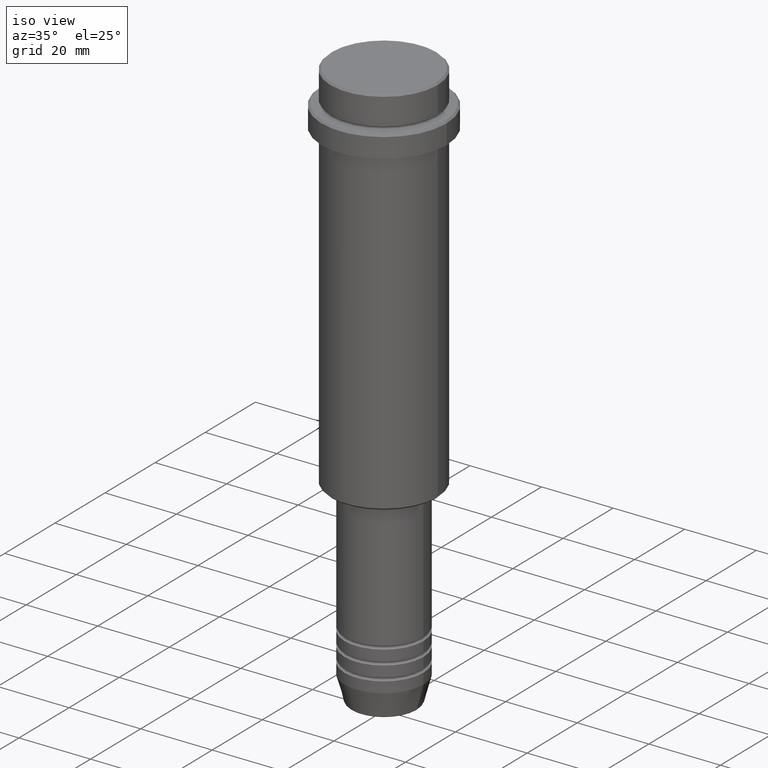
[diagram: clean part render]
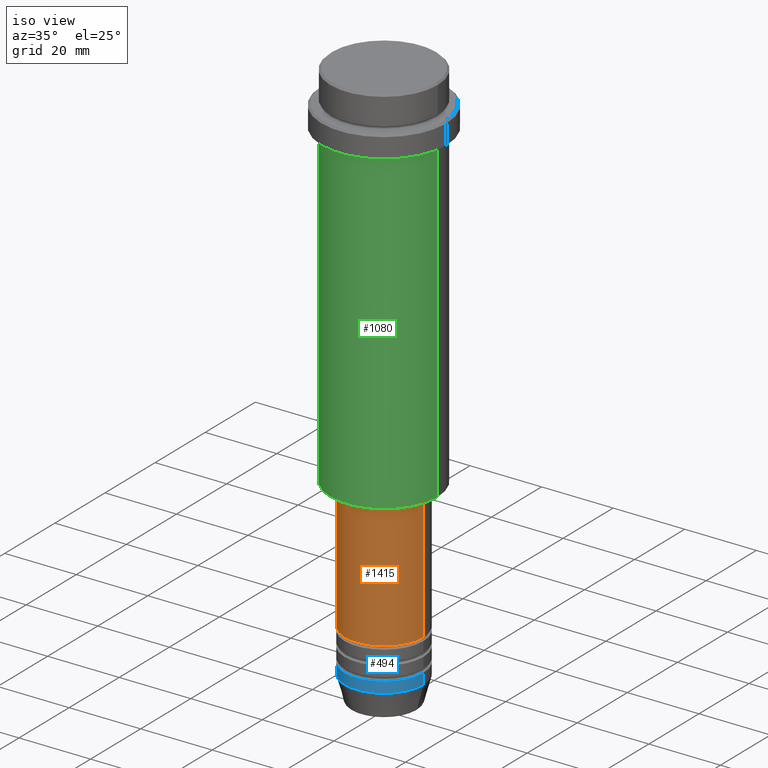
[diagram: same view with three faces highlighted in distinct colors, each labeled with its STEP entity id]
A machine part, iso view with three faces highlighted in distinct colors.
Their STEP definitions:

[orange] entity #1415 — the highlighted cylindrical surface (partial cylindrical patch) has radius 11 mm, axis along (-0, -0, 1).
#3 = EDGE_CURVE ( 'NONE', #942, #923, #1340, .T. ) ;
#9 = VECTOR ( 'NONE', #1145, 1000.000000000000000 ) ;
#146 = ORIENTED_EDGE ( 'NONE', *, *, #3, .F. ) ;
#249 = CARTESIAN_POINT ( 'NONE',  ( 0.000000000000000000, 0.000000000000000000, 0.000000000000000000 ) ) ;
#283 = LINE ( 'NONE', #616, #9 ) ;
#286 = ORIENTED_EDGE ( 'NONE', *, *, #951, .T. ) ;
#364 = FACE_OUTER_BOUND ( 'NONE', #1179, .T. ) ;
#517 = EDGE_CURVE ( 'NONE', #519, #1363, #1379, .T. ) ;
#519 = VERTEX_POINT ( 'NONE', #1342 ) ;
#535 = EDGE_CURVE ( 'NONE', #519, #942, #858, .T. ) ;
#598 = DIRECTION ( 'NONE',  ( -0.000000000000000000, -0.000000000000000000, 1.000000000000000000 ) ) ;
#601 = ORIENTED_EDGE ( 'NONE', *, *, #517, .T. ) ;
#607 = CARTESIAN_POINT ( 'NONE',  ( -11.00000000000000000, 1.347111479062088405E-15, 0.000000000000000000 ) ) ;
#613 = CARTESIAN_POINT ( 'NONE',  ( 11.00000000000000000, 0.000000000000000000, -140.9999999999999147 ) ) ;
#616 = CARTESIAN_POINT ( 'NONE',  ( 11.00000000000000000, 0.000000000000000000, 0.000000000000000000 ) ) ;
#636 = AXIS2_PLACEMENT_3D ( 'NONE', #249, #754, #872 ) ;
#754 = DIRECTION ( 'NONE',  ( -0.000000000000000000, -0.000000000000000000, 1.000000000000000000 ) ) ;
#781 = ORIENTED_EDGE ( 'NONE', *, *, #535, .F. ) ;
#858 = LINE ( 'NONE', #607, #1274 ) ;
#872 = DIRECTION ( 'NONE',  ( 1.000000000000000000, 0.000000000000000000, 0.000000000000000000 ) ) ;
#895 = CARTESIAN_POINT ( 'NONE',  ( 10.99999999999999822, 0.000000000000000000, -106.0000000000000142 ) ) ;
#921 = CARTESIAN_POINT ( 'NONE',  ( -10.99999999999999822, 1.347111479062088207E-15, -106.0000000000000142 ) ) ;
#923 = VERTEX_POINT ( 'NONE', #895 ) ;
#939 = DIRECTION ( 'NONE',  ( 1.000000000000000000, 0.000000000000000000, 0.000000000000000000 ) ) ;
#942 = VERTEX_POINT ( 'NONE', #921 ) ;
#951 = EDGE_CURVE ( 'NONE', #1363, #923, #283, .T. ) ;
#1019 = AXIS2_PLACEMENT_3D ( 'NONE', #1086, #1173, #1074 ) ;
#1068 = AXIS2_PLACEMENT_3D ( 'NONE', #1144, #598, #939 ) ;
#1074 = DIRECTION ( 'NONE',  ( 1.000000000000000000, 0.000000000000000000, 0.000000000000000000 ) ) ;
#1086 = CARTESIAN_POINT ( 'NONE',  ( 0.000000000000000000, 0.000000000000000000, -106.0000000000000142 ) ) ;
#1144 = CARTESIAN_POINT ( 'NONE',  ( 0.000000000000000000, 0.000000000000000000, -140.9999999999999147 ) ) ;
#1145 = DIRECTION ( 'NONE',  ( -0.000000000000000000, -0.000000000000000000, 1.000000000000000000 ) ) ;
#1173 = DIRECTION ( 'NONE',  ( -0.000000000000000000, -0.000000000000000000, 1.000000000000000000 ) ) ;
#1179 = EDGE_LOOP ( 'NONE', ( #781, #601, #286, #146 ) ) ;
#1190 = DIRECTION ( 'NONE',  ( -0.000000000000000000, -0.000000000000000000, 1.000000000000000000 ) ) ;
#1240 = CYLINDRICAL_SURFACE ( 'NONE', #636, 11.00000000000000000 ) ;
#1274 = VECTOR ( 'NONE', #1190, 1000.000000000000000 ) ;
#1340 = CIRCLE ( 'NONE', #1019, 10.99999999999999822 ) ;
#1342 = CARTESIAN_POINT ( 'NONE',  ( -11.00000000000000000, 1.347111479062088405E-15, -140.9999999999999147 ) ) ;
#1363 = VERTEX_POINT ( 'NONE', #613 ) ;
#1379 = CIRCLE ( 'NONE', #1068, 11.00000000000000000 ) ;
#1415 = ADVANCED_FACE ( 'NONE', ( #364 ), #1240, .T. ) ;

[blue] entity #494 — the highlighted cylindrical surface (partial cylindrical patch) has radius 11 mm, axis along (-0, -0, 1).
#39 = LINE ( 'NONE', #1275, #1325 ) ;
#44 = DIRECTION ( 'NONE',  ( -0.000000000000000000, -0.000000000000000000, 1.000000000000000000 ) ) ;
#57 = DIRECTION ( 'NONE',  ( -0.000000000000000000, -0.000000000000000000, 1.000000000000000000 ) ) ;
#140 = CIRCLE ( 'NONE', #959, 11.00000000000000000 ) ;
#197 = VERTEX_POINT ( 'NONE', #783 ) ;
#207 = ORIENTED_EDGE ( 'NONE', *, *, #771, .T. ) ;
#256 = FACE_OUTER_BOUND ( 'NONE', #1384, .T. ) ;
#292 = VERTEX_POINT ( 'NONE', #388 ) ;
#350 = ORIENTED_EDGE ( 'NONE', *, *, #1039, .F. ) ;
#388 = CARTESIAN_POINT ( 'NONE',  ( -11.00000000000000000, 1.347111479062088405E-15, -153.0000000000000000 ) ) ;
#426 = CARTESIAN_POINT ( 'NONE',  ( -11.00000000000000000, 1.347111479062088405E-15, -150.0000000000000000 ) ) ;
#466 = CARTESIAN_POINT ( 'NONE',  ( 0.000000000000000000, 0.000000000000000000, -153.0000000000000000 ) ) ;
#473 = DIRECTION ( 'NONE',  ( -0.000000000000000000, -0.000000000000000000, 1.000000000000000000 ) ) ;
#478 = DIRECTION ( 'NONE',  ( 1.000000000000000000, 0.000000000000000000, 0.000000000000000000 ) ) ;
#494 = ADVANCED_FACE ( 'NONE', ( #256 ), #589, .T. ) ;
#589 = CYLINDRICAL_SURFACE ( 'NONE', #605, 11.00000000000000000 ) ;
#600 = DIRECTION ( 'NONE',  ( 1.000000000000000000, 0.000000000000000000, 0.000000000000000000 ) ) ;
#604 = CARTESIAN_POINT ( 'NONE',  ( 11.00000000000000000, 0.000000000000000000, 0.000000000000000000 ) ) ;
#605 = AXIS2_PLACEMENT_3D ( 'NONE', #1033, #44, #478 ) ;
#608 = AXIS2_PLACEMENT_3D ( 'NONE', #989, #735, #768 ) ;
#623 = ORIENTED_EDGE ( 'NONE', *, *, #1360, .F. ) ;
#735 = DIRECTION ( 'NONE',  ( -0.000000000000000000, -0.000000000000000000, 1.000000000000000000 ) ) ;
#768 = DIRECTION ( 'NONE',  ( 1.000000000000000000, 0.000000000000000000, 0.000000000000000000 ) ) ;
#771 = EDGE_CURVE ( 'NONE', #292, #932, #140, .T. ) ;
#783 = CARTESIAN_POINT ( 'NONE',  ( 11.00000000000000000, 0.000000000000000000, -150.0000000000000000 ) ) ;
#898 = EDGE_CURVE ( 'NONE', #932, #197, #1061, .T. ) ;
#932 = VERTEX_POINT ( 'NONE', #1371 ) ;
#959 = AXIS2_PLACEMENT_3D ( 'NONE', #466, #473, #600 ) ;
#960 = DIRECTION ( 'NONE',  ( -0.000000000000000000, -0.000000000000000000, 1.000000000000000000 ) ) ;
#989 = CARTESIAN_POINT ( 'NONE',  ( 0.000000000000000000, 0.000000000000000000, -150.0000000000000000 ) ) ;
#1004 = VERTEX_POINT ( 'NONE', #426 ) ;
#1033 = CARTESIAN_POINT ( 'NONE',  ( 0.000000000000000000, 0.000000000000000000, 0.000000000000000000 ) ) ;
#1039 = EDGE_CURVE ( 'NONE', #1004, #197, #1229, .T. ) ;
#1061 = LINE ( 'NONE', #604, #1276 ) ;
#1139 = ORIENTED_EDGE ( 'NONE', *, *, #898, .T. ) ;
#1229 = CIRCLE ( 'NONE', #608, 11.00000000000000000 ) ;
#1275 = CARTESIAN_POINT ( 'NONE',  ( -11.00000000000000000, 1.347111479062088405E-15, 0.000000000000000000 ) ) ;
#1276 = VECTOR ( 'NONE', #960, 1000.000000000000000 ) ;
#1325 = VECTOR ( 'NONE', #57, 1000.000000000000000 ) ;
#1360 = EDGE_CURVE ( 'NONE', #292, #1004, #39, .T. ) ;
#1371 = CARTESIAN_POINT ( 'NONE',  ( 11.00000000000000000, 0.000000000000000000, -153.0000000000000000 ) ) ;
#1384 = EDGE_LOOP ( 'NONE', ( #623, #207, #1139, #350 ) ) ;

[green] entity #1080 — the highlighted cylindrical surface (partial cylindrical patch) has radius 15 mm, axis along (-0, -0, 1).
#6 = DIRECTION ( 'NONE',  ( -0.000000000000000000, -0.000000000000000000, 1.000000000000000000 ) ) ;
#11 = LINE ( 'NONE', #667, #137 ) ;
#29 = LINE ( 'NONE', #1020, #334 ) ;
#58 = DIRECTION ( 'NONE',  ( 1.000000000000000000, 0.000000000000000000, 0.000000000000000000 ) ) ;
#65 = DIRECTION ( 'NONE',  ( -0.000000000000000000, -0.000000000000000000, 1.000000000000000000 ) ) ;
#137 = VECTOR ( 'NONE', #6, 1000.000000000000000 ) ;
#184 = CARTESIAN_POINT ( 'NONE',  ( 0.000000000000000000, 0.000000000000000000, -104.5000000000000000 ) ) ;
#194 = EDGE_CURVE ( 'NONE', #1148, #825, #11, .T. ) ;
#199 = DIRECTION ( 'NONE',  ( -0.000000000000000000, -0.000000000000000000, 1.000000000000000000 ) ) ;
#219 = CIRCLE ( 'NONE', #354, 15.00000000000000178 ) ;
#263 = VERTEX_POINT ( 'NONE', #995 ) ;
#272 = CARTESIAN_POINT ( 'NONE',  ( 15.00000000000000178, 0.000000000000000000, -16.00000000000000000 ) ) ;
#295 = VERTEX_POINT ( 'NONE', #272 ) ;
#334 = VECTOR ( 'NONE', #902, 1000.000000000000000 ) ;
#354 = AXIS2_PLACEMENT_3D ( 'NONE', #678, #820, #58 ) ;
#421 = FACE_OUTER_BOUND ( 'NONE', #1296, .T. ) ;
#476 = CARTESIAN_POINT ( 'NONE',  ( -15.00000000000000355, 1.836970198721029983E-15, -16.00000000000000000 ) ) ;
#479 = EDGE_CURVE ( 'NONE', #263, #295, #29, .T. ) ;
#483 = ORIENTED_EDGE ( 'NONE', *, *, #479, .T. ) ;
#516 = DIRECTION ( 'NONE',  ( -1.000000000000000000, 0.000000000000000000, 0.000000000000000000 ) ) ;
#532 = CIRCLE ( 'NONE', #1247, 15.00000000000000000 ) ;
#650 = ORIENTED_EDGE ( 'NONE', *, *, #852, .F. ) ;
#667 = CARTESIAN_POINT ( 'NONE',  ( -15.00000000000000000, 1.836970198721029589E-15, 0.000000000000000000 ) ) ;
#678 = CARTESIAN_POINT ( 'NONE',  ( 0.000000000000000000, 0.000000000000000000, -16.00000000000000000 ) ) ;
#701 = ORIENTED_EDGE ( 'NONE', *, *, #731, .T. ) ;
#731 = EDGE_CURVE ( 'NONE', #1148, #263, #532, .T. ) ;
#820 = DIRECTION ( 'NONE',  ( -0.000000000000000000, -0.000000000000000000, 1.000000000000000000 ) ) ;
#825 = VERTEX_POINT ( 'NONE', #476 ) ;
#852 = EDGE_CURVE ( 'NONE', #825, #295, #219, .T. ) ;
#889 = CARTESIAN_POINT ( 'NONE',  ( -15.00000000000000000, 1.836970198721029589E-15, -104.5000000000000000 ) ) ;
#902 = DIRECTION ( 'NONE',  ( -0.000000000000000000, -0.000000000000000000, 1.000000000000000000 ) ) ;
#995 = CARTESIAN_POINT ( 'NONE',  ( 15.00000000000000000, 0.000000000000000000, -104.5000000000000000 ) ) ;
#1010 = ORIENTED_EDGE ( 'NONE', *, *, #194, .F. ) ;
#1020 = CARTESIAN_POINT ( 'NONE',  ( 15.00000000000000000, 0.000000000000000000, 0.000000000000000000 ) ) ;
#1080 = ADVANCED_FACE ( 'NONE', ( #421 ), #1091, .T. ) ;
#1091 = CYLINDRICAL_SURFACE ( 'NONE', #1323, 15.00000000000000000 ) ;
#1148 = VERTEX_POINT ( 'NONE', #889 ) ;
#1183 = CARTESIAN_POINT ( 'NONE',  ( 0.000000000000000000, 0.000000000000000000, 0.000000000000000000 ) ) ;
#1247 = AXIS2_PLACEMENT_3D ( 'NONE', #184, #65, #516 ) ;
#1296 = EDGE_LOOP ( 'NONE', ( #1010, #701, #483, #650 ) ) ;
#1299 = DIRECTION ( 'NONE',  ( 1.000000000000000000, 0.000000000000000000, 0.000000000000000000 ) ) ;
#1323 = AXIS2_PLACEMENT_3D ( 'NONE', #1183, #199, #1299 ) ;